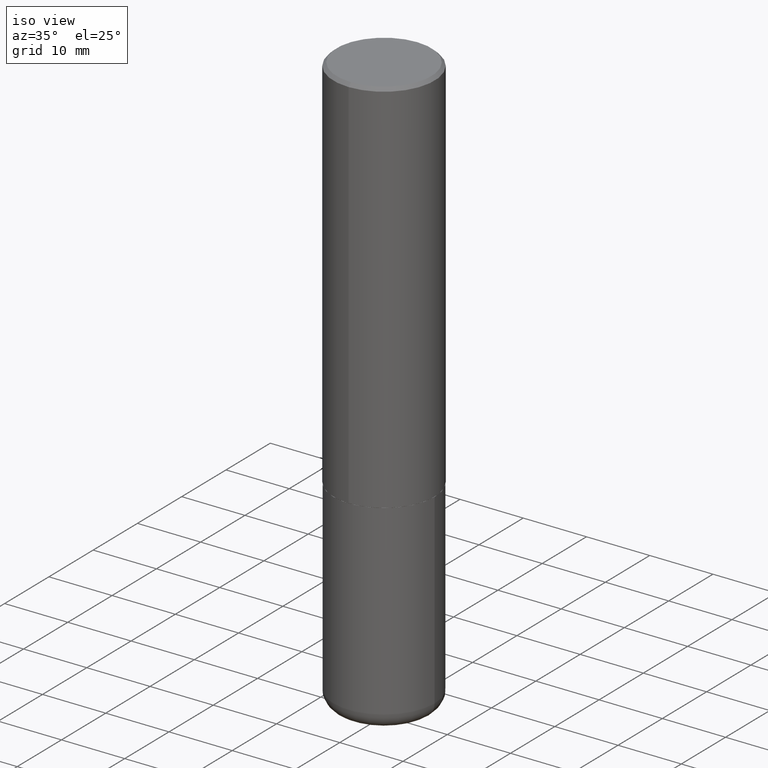
[diagram: clean part render]
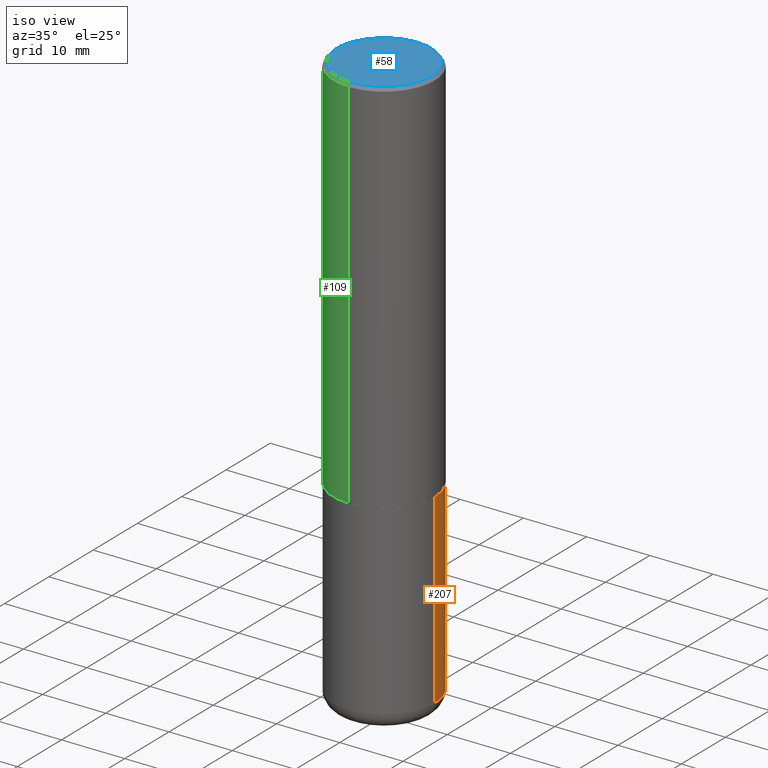
[diagram: same view with three faces highlighted in distinct colors, each labeled with its STEP entity id]
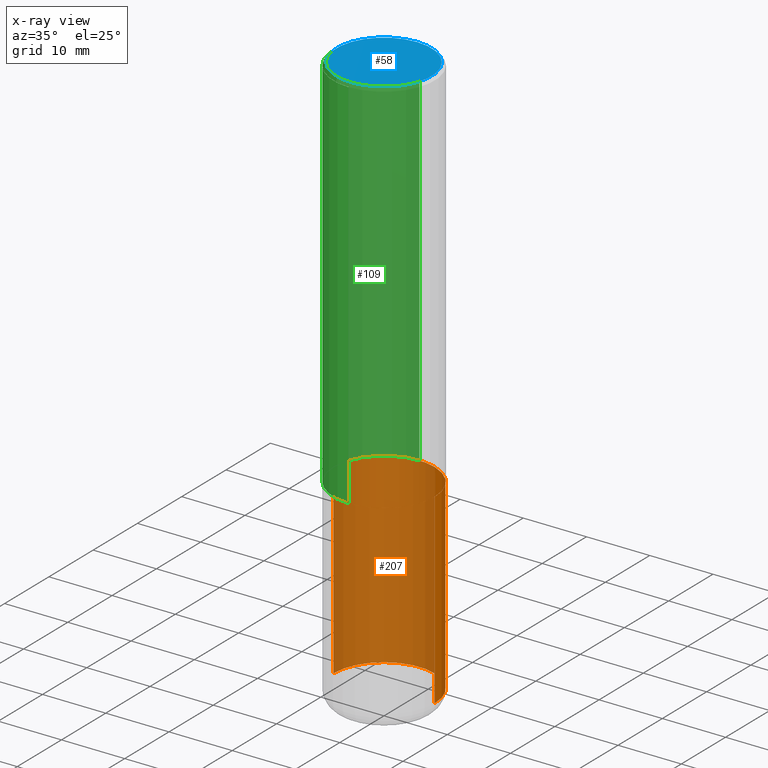
[diagram: x-ray of the same camera — body ghosted, the three highlighted faces saturated]
A machine part, iso view with three faces highlighted in distinct colors.
The next image is the same camera in x-ray (body ghosted, the three faces saturated) — at least one of them is partly hidden behind the body in this view.
Their STEP definitions:

[orange] entity #207 — the highlighted cylindrical surface (partial cylindrical patch) has radius 7.9997 mm, axis along (-0, 0, 1).
#48 = CARTESIAN_POINT ( 'NONE',  ( 0.000000000000000000, 0.000000000000000000, 0.000000000000000000 ) ) ;
#56 = CARTESIAN_POINT ( 'NONE',  ( 8.616853885473946211E-29, -1.230258364554770589E-14, -3.523599999999999621 ) ) ;
#66 = LINE ( 'NONE', #323, #319 ) ;
#69 = ORIENTED_EDGE ( 'NONE', *, *, #187, .F. ) ;
#72 = VERTEX_POINT ( 'NONE', #206 ) ;
#85 = CIRCLE ( 'NONE', #197, 0.3149500000000000077 ) ;
#117 = DIRECTION ( 'NONE',  ( -2.445468806185136597E-29, 3.491481338843145583E-15, 1.000000000000000000 ) ) ;
#119 = VERTEX_POINT ( 'NONE', #173 ) ;
#139 = CARTESIAN_POINT ( 'NONE',  ( -0.3149500000000000077, -8.037226085805055984E-15, -2.362199999999999633 ) ) ;
#140 = ORIENTED_EDGE ( 'NONE', *, *, #218, .T. ) ;
#142 = CARTESIAN_POINT ( 'NONE',  ( 0.3149499999999999522, -1.450186774088499734E-14, -3.523599999999999621 ) ) ;
#150 = DIRECTION ( 'NONE',  ( -2.445468806185136877E-29, 3.491481338843145188E-15, 1.000000000000000000 ) ) ;
#151 = ORIENTED_EDGE ( 'NONE', *, *, #374, .T. ) ;
#169 = CIRCLE ( 'NONE', #242, 0.3149500000000000077 ) ;
#173 = CARTESIAN_POINT ( 'NONE',  ( 0.3149500000000000077, -1.044686131395256792E-14, -2.362199999999999633 ) ) ;
#174 = ORIENTED_EDGE ( 'NONE', *, *, #406, .F. ) ;
#176 = VERTEX_POINT ( 'NONE', #139 ) ;
#181 = CARTESIAN_POINT ( 'NONE',  ( 5.776686413970529753E-29, -8.247577218615278049E-15, -2.362199999999999633 ) ) ;
#187 = EDGE_CURVE ( 'NONE', #119, #176, #169, .T. ) ;
#194 = LINE ( 'NONE', #291, #272 ) ;
#197 = AXIS2_PLACEMENT_3D ( 'NONE', #56, #382, #407 ) ;
#206 = CARTESIAN_POINT ( 'NONE',  ( -0.3149499999999999522, -1.006472929927126990E-14, -3.523599999999999621 ) ) ;
#207 = ADVANCED_FACE ( 'NONE', ( #375 ), #273, .T. ) ;
#218 = EDGE_CURVE ( 'NONE', #284, #72, #85, .T. ) ;
#242 = AXIS2_PLACEMENT_3D ( 'NONE', #181, #117, #246 ) ;
#246 = DIRECTION ( 'NONE',  ( 1.000000000000000000, -6.982962677686266711E-15, 0.000000000000000000 ) ) ;
#250 = EDGE_LOOP ( 'NONE', ( #140, #151, #69, #174 ) ) ;
#272 = VECTOR ( 'NONE', #390, 39.37007874015748143 ) ;
#273 = CYLINDRICAL_SURFACE ( 'NONE', #313, 0.3149500000000000077 ) ;
#284 = VERTEX_POINT ( 'NONE', #142 ) ;
#291 = CARTESIAN_POINT ( 'NONE',  ( 0.3149500000000000077, -2.199284095337289871E-15, 1.535751875536930130E-29 ) ) ;
#313 = AXIS2_PLACEMENT_3D ( 'NONE', #48, #384, #349 ) ;
#319 = VECTOR ( 'NONE', #150, 39.37007874015748143 ) ;
#323 = CARTESIAN_POINT ( 'NONE',  ( -0.3149500000000000077, 2.237854346276435590E-15, -1.549218606675782676E-29 ) ) ;
#349 = DIRECTION ( 'NONE',  ( 1.000000000000000000, -6.982962677686266711E-15, 4.876176775795936353E-29 ) ) ;
#374 = EDGE_CURVE ( 'NONE', #72, #176, #66, .T. ) ;
#375 = FACE_OUTER_BOUND ( 'NONE', #250, .T. ) ;
#382 = DIRECTION ( 'NONE',  ( -2.445468806185136597E-29, 3.491481338843145583E-15, 1.000000000000000000 ) ) ;
#384 = DIRECTION ( 'NONE',  ( -2.445468806185136597E-29, 3.491481338843145583E-15, 1.000000000000000000 ) ) ;
#390 = DIRECTION ( 'NONE',  ( -2.445468806185136877E-29, 3.491481338843145188E-15, 1.000000000000000000 ) ) ;
#406 = EDGE_CURVE ( 'NONE', #284, #119, #194, .T. ) ;
#407 = DIRECTION ( 'NONE',  ( 1.000000000000000000, -6.982962677686269866E-15, 0.000000000000000000 ) ) ;

[blue] entity #58 — the highlighted planar face has unit normal (0, -0, -1).
#1 = DIRECTION ( 'NONE',  ( -6.982962677686265922E-15, -1.000000000000000000, 3.488924027272925171E-15 ) ) ;
#30 = AXIS2_PLACEMENT_3D ( 'NONE', #399, #165, #37 ) ;
#34 = AXIS2_PLACEMENT_3D ( 'NONE', #95, #285, #155 ) ;
#37 = DIRECTION ( 'NONE',  ( 6.982962677686265922E-15, 1.000000000000000000, -3.488924027272925171E-15 ) ) ;
#58 = ADVANCED_FACE ( 'NONE', ( #362 ), #333, .F. ) ;
#79 = VERTEX_POINT ( 'NONE', #370 ) ;
#83 = EDGE_LOOP ( 'NONE', ( #337, #386 ) ) ;
#91 = CARTESIAN_POINT ( 'NONE',  ( 3.987991069510620843E-45, -5.685472222147516849E-31, -1.629577536714519852E-16 ) ) ;
#92 = AXIS2_PLACEMENT_3D ( 'NONE', #91, #225, #1 ) ;
#95 = CARTESIAN_POINT ( 'NONE',  ( 3.987991069510620843E-45, -5.685472222147516849E-31, -1.629577536714519852E-16 ) ) ;
#97 = CIRCLE ( 'NONE', #92, 0.2949500000000001565 ) ;
#154 = CIRCLE ( 'NONE', #34, 0.2949500000000001565 ) ;
#155 = DIRECTION ( 'NONE',  ( -6.982962677686265922E-15, -1.000000000000000000, 3.488924027272925171E-15 ) ) ;
#165 = DIRECTION ( 'NONE',  ( 2.447254567310142588E-29, -3.488924027272925171E-15, -1.000000000000000000 ) ) ;
#225 = DIRECTION ( 'NONE',  ( -2.447254567310142588E-29, 3.488924027272925566E-15, 1.000000000000000000 ) ) ;
#262 = VERTEX_POINT ( 'NONE', #275 ) ;
#275 = CARTESIAN_POINT ( 'NONE',  ( 2.129454468560427362E-15, 0.2949500000000001565, -1.192015895515601796E-15 ) ) ;
#285 = DIRECTION ( 'NONE',  ( -2.447254567310142588E-29, 3.488924027272925566E-15, 1.000000000000000000 ) ) ;
#333 = PLANE ( 'NONE',  #30 ) ;
#337 = ORIENTED_EDGE ( 'NONE', *, *, #385, .T. ) ;
#362 = FACE_OUTER_BOUND ( 'NONE', #83, .T. ) ;
#370 = CARTESIAN_POINT ( 'NONE',  ( -2.092108864420428426E-15, -0.2949500000000001565, 8.661003881726979238E-16 ) ) ;
#385 = EDGE_CURVE ( 'NONE', #262, #79, #154, .T. ) ;
#386 = ORIENTED_EDGE ( 'NONE', *, *, #417, .T. ) ;
#399 = CARTESIAN_POINT ( 'NONE',  ( 2.059624841783565247E-15, 0.2949500000000001565, -1.110537018679876025E-15 ) ) ;
#417 = EDGE_CURVE ( 'NONE', #79, #262, #97, .T. ) ;

[green] entity #109 — the highlighted cylindrical surface (partial cylindrical patch) has radius 7.9997 mm, axis along (-0, 0, 1).
#13 = EDGE_CURVE ( 'NONE', #371, #408, #357, .T. ) ;
#19 = CARTESIAN_POINT ( 'NONE',  ( 2.199284095337289871E-15, 0.3149499999999999522, -0.02000000000000116615 ) ) ;
#21 = CARTESIAN_POINT ( 'NONE',  ( 5.778457484332707712E-29, -8.238047413196831500E-15, -2.361199999999999743 ) ) ;
#28 = CARTESIAN_POINT ( 'NONE',  ( -2.199284095337290265E-15, -0.3149500000000001743, 1.098836622389608521E-15 ) ) ;
#62 = VECTOR ( 'NONE', #377, 39.37007874015748143 ) ;
#76 = ORIENTED_EDGE ( 'NONE', *, *, #93, .F. ) ;
#89 = DIRECTION ( 'NONE',  ( -6.982962677686264344E-15, -1.000000000000000000, 3.488924027272925566E-15 ) ) ;
#93 = EDGE_CURVE ( 'NONE', #279, #276, #141, .T. ) ;
#109 = ADVANCED_FACE ( 'NONE', ( #121 ), #249, .T. ) ;
#115 = DIRECTION ( 'NONE',  ( -6.982962677686265922E-15, -1.000000000000000000, 3.469564049740290009E-15 ) ) ;
#121 = FACE_OUTER_BOUND ( 'NONE', #274, .T. ) ;
#124 = CARTESIAN_POINT ( 'NONE',  ( -2.199284095337233467E-15, -0.3149500000000085564, -2.361199999999998411 ) ) ;
#130 = EDGE_CURVE ( 'NONE', #371, #279, #183, .T. ) ;
#141 = CIRCLE ( 'NONE', #232, 0.3149500000000000077 ) ;
#143 = DIRECTION ( 'NONE',  ( -2.447254567310142588E-29, 3.488924027272925566E-15, 1.000000000000000000 ) ) ;
#148 = CARTESIAN_POINT ( 'NONE',  ( -2.160713844398143363E-15, -0.3149500000000000632, -0.01999999999999896999 ) ) ;
#156 = DIRECTION ( 'NONE',  ( -2.447254567310142588E-29, 3.488924027272925171E-15, 1.000000000000000000 ) ) ;
#163 = ORIENTED_EDGE ( 'NONE', *, *, #130, .F. ) ;
#183 = LINE ( 'NONE', #309, #62 ) ;
#184 = AXIS2_PLACEMENT_3D ( 'NONE', #21, #143, #115 ) ;
#185 = LINE ( 'NONE', #28, #248 ) ;
#189 = CARTESIAN_POINT ( 'NONE',  ( 2.237854346276465567E-15, 0.3149499999999920141, -2.361200000000000632 ) ) ;
#211 = DIRECTION ( 'NONE',  ( -2.447254567310142588E-29, 3.488924027272925566E-15, 1.000000000000000000 ) ) ;
#221 = ORIENTED_EDGE ( 'NONE', *, *, #13, .T. ) ;
#232 = AXIS2_PLACEMENT_3D ( 'NONE', #283, #277, #379 ) ;
#248 = VECTOR ( 'NONE', #156, 39.37007874015748143 ) ;
#249 = CYLINDRICAL_SURFACE ( 'NONE', #398, 0.3149500000000001743 ) ;
#274 = EDGE_LOOP ( 'NONE', ( #163, #221, #363, #76 ) ) ;
#276 = VERTEX_POINT ( 'NONE', #148 ) ;
#277 = DIRECTION ( 'NONE',  ( -2.447254567310142588E-29, 3.488924027272925566E-15, 1.000000000000000000 ) ) ;
#279 = VERTEX_POINT ( 'NONE', #19 ) ;
#283 = CARTESIAN_POINT ( 'NONE',  ( 4.894509134620301711E-31, -6.977848054545874748E-17, -0.02000000000000006981 ) ) ;
#308 = EDGE_CURVE ( 'NONE', #408, #276, #185, .T. ) ;
#309 = CARTESIAN_POINT ( 'NONE',  ( 2.237854346276435985E-15, 0.3149500000000001743, -1.098836622389608521E-15 ) ) ;
#357 = CIRCLE ( 'NONE', #184, 0.3149500000000002853 ) ;
#363 = ORIENTED_EDGE ( 'NONE', *, *, #308, .T. ) ;
#371 = VERTEX_POINT ( 'NONE', #189 ) ;
#377 = DIRECTION ( 'NONE',  ( -2.447254567310142588E-29, 3.488924027272925171E-15, 1.000000000000000000 ) ) ;
#379 = DIRECTION ( 'NONE',  ( -6.982962677686265922E-15, -1.000000000000000000, 3.483117034309591132E-15 ) ) ;
#398 = AXIS2_PLACEMENT_3D ( 'NONE', #404, #211, #89 ) ;
#404 = CARTESIAN_POINT ( 'NONE',  ( 0.000000000000000000, 0.000000000000000000, 0.000000000000000000 ) ) ;
#408 = VERTEX_POINT ( 'NONE', #124 ) ;